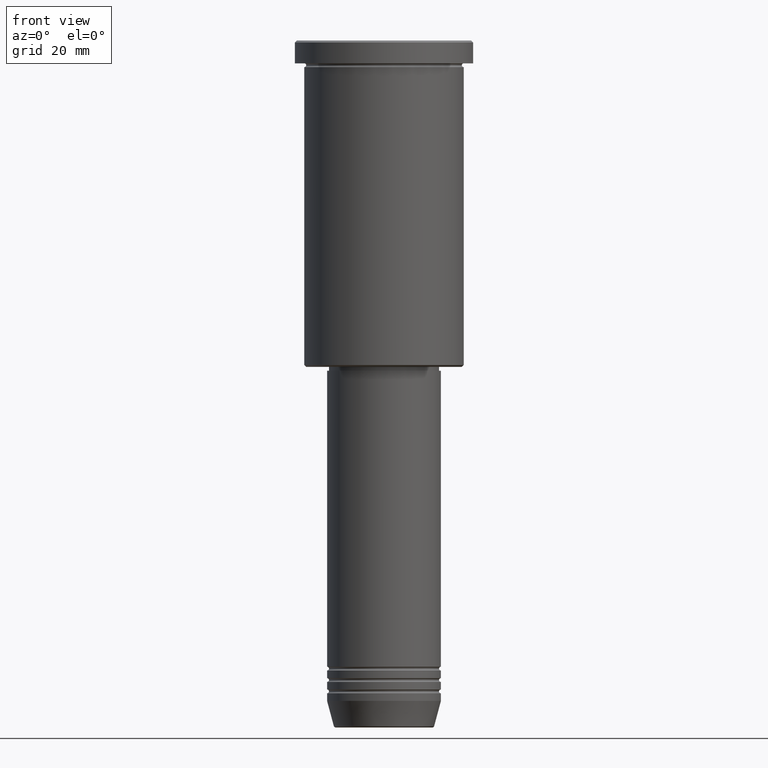
[diagram: clean part render]
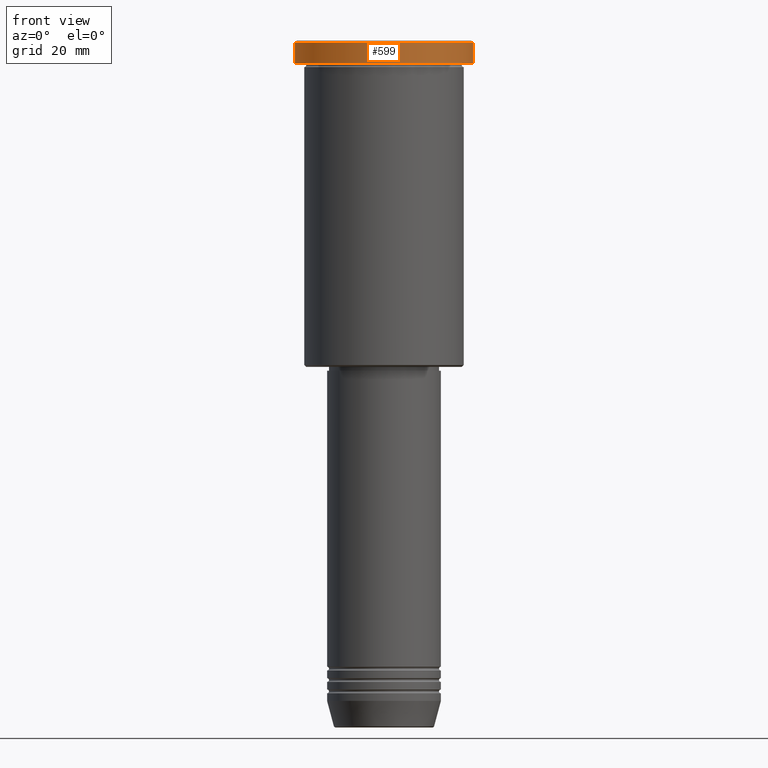
[diagram: same view with one face highlighted and labeled with its STEP entity id]
A machine part, front view. The second image highlights one B-rep face of the part: STEP entity #599.
In plain terms, the highlighted cylindrical surface (partial cylindrical patch) has radius 23.5 mm, axis along (-0, -0, 1).
Its self-contained STEP definition (entity closure, byte-faithful):
#130 = DIRECTION ( 'NONE',  ( -0.000000000000000000, -0.000000000000000000, 1.000000000000000000 ) ) ;
#140 = EDGE_CURVE ( 'NONE', #627, #482, #661, .T. ) ;
#161 = CIRCLE ( 'NONE', #670, 23.50000000000000000 ) ;
#304 = EDGE_LOOP ( 'NONE', ( #1030, #943, #1050, #799 ) ) ;
#332 = CIRCLE ( 'NONE', #851, 23.50000000000000000 ) ;
#334 = FACE_OUTER_BOUND ( 'NONE', #304, .T. ) ;
#387 = DIRECTION ( 'NONE',  ( -0.000000000000000000, -0.000000000000000000, 1.000000000000000000 ) ) ;
#404 = DIRECTION ( 'NONE',  ( -0.000000000000000000, -0.000000000000000000, 1.000000000000000000 ) ) ;
#414 = CARTESIAN_POINT ( 'NONE',  ( -23.50000000000000000, 2.877919977996280320E-15, 0.000000000000000000 ) ) ;
#418 = DIRECTION ( 'NONE',  ( -0.000000000000000000, -0.000000000000000000, 1.000000000000000000 ) ) ;
#452 = AXIS2_PLACEMENT_3D ( 'NONE', #867, #130, #962 ) ;
#454 = DIRECTION ( 'NONE',  ( 0.000000000000000000, 0.000000000000000000, -1.000000000000000000 ) ) ;
#466 = VERTEX_POINT ( 'NONE', #1172 ) ;
#482 = VERTEX_POINT ( 'NONE', #1119 ) ;
#527 = CARTESIAN_POINT ( 'NONE',  ( 0.000000000000000000, 0.000000000000000000, -0.5000000000000004441 ) ) ;
#599 = ADVANCED_FACE ( 'NONE', ( #334 ), #873, .T. ) ;
#616 = EDGE_CURVE ( 'NONE', #466, #915, #849, .T. ) ;
#627 = VERTEX_POINT ( 'NONE', #770 ) ;
#632 = DIRECTION ( 'NONE',  ( 1.000000000000000000, 0.000000000000000000, 0.000000000000000000 ) ) ;
#661 = LINE ( 'NONE', #758, #1057 ) ;
#670 = AXIS2_PLACEMENT_3D ( 'NONE', #827, #387, #1017 ) ;
#758 = CARTESIAN_POINT ( 'NONE',  ( 23.50000000000000000, 0.000000000000000000, 0.000000000000000000 ) ) ;
#770 = CARTESIAN_POINT ( 'NONE',  ( 23.50000000000000000, 0.000000000000000000, -5.999999999999994671 ) ) ;
#799 = ORIENTED_EDGE ( 'NONE', *, *, #1041, .T. ) ;
#827 = CARTESIAN_POINT ( 'NONE',  ( 0.000000000000000000, 0.000000000000000000, -5.999999999999994671 ) ) ;
#849 = LINE ( 'NONE', #414, #1075 ) ;
#851 = AXIS2_PLACEMENT_3D ( 'NONE', #527, #454, #632 ) ;
#866 = CARTESIAN_POINT ( 'NONE',  ( -23.50000000000000000, 2.877919977996280320E-15, -0.5000000000000004441 ) ) ;
#867 = CARTESIAN_POINT ( 'NONE',  ( 0.000000000000000000, 0.000000000000000000, 0.000000000000000000 ) ) ;
#872 = EDGE_CURVE ( 'NONE', #466, #627, #161, .T. ) ;
#873 = CYLINDRICAL_SURFACE ( 'NONE', #452, 23.50000000000000000 ) ;
#915 = VERTEX_POINT ( 'NONE', #866 ) ;
#943 = ORIENTED_EDGE ( 'NONE', *, *, #872, .T. ) ;
#962 = DIRECTION ( 'NONE',  ( 1.000000000000000000, 0.000000000000000000, 0.000000000000000000 ) ) ;
#1017 = DIRECTION ( 'NONE',  ( 1.000000000000000000, 0.000000000000000000, 0.000000000000000000 ) ) ;
#1030 = ORIENTED_EDGE ( 'NONE', *, *, #616, .F. ) ;
#1041 = EDGE_CURVE ( 'NONE', #482, #915, #332, .T. ) ;
#1050 = ORIENTED_EDGE ( 'NONE', *, *, #140, .T. ) ;
#1057 = VECTOR ( 'NONE', #404, 1000.000000000000000 ) ;
#1075 = VECTOR ( 'NONE', #418, 1000.000000000000000 ) ;
#1119 = CARTESIAN_POINT ( 'NONE',  ( 23.50000000000000000, 0.000000000000000000, -0.5000000000000004441 ) ) ;
#1172 = CARTESIAN_POINT ( 'NONE',  ( -23.50000000000000000, 2.877919977996280320E-15, -5.999999999999994671 ) ) ;